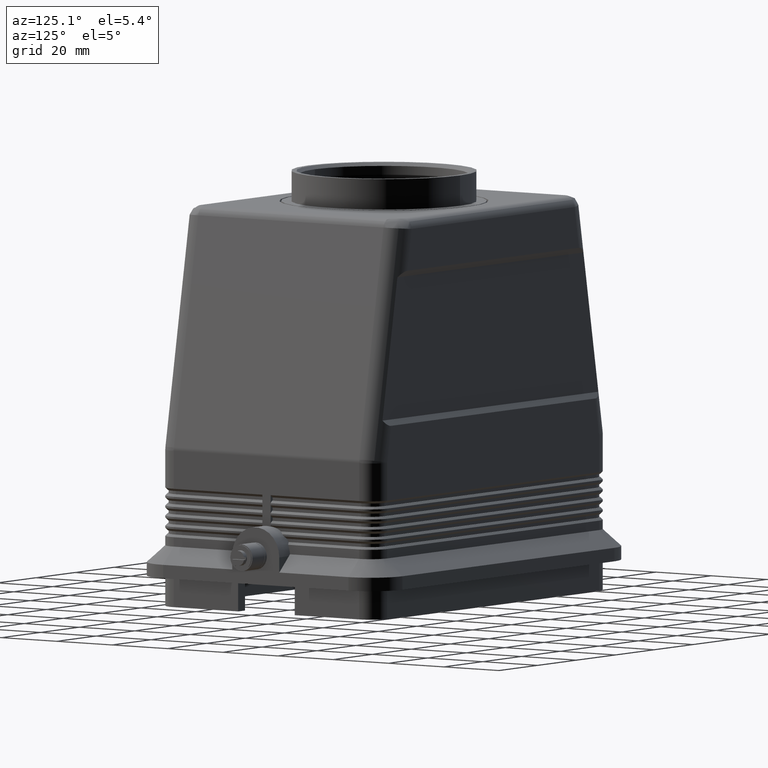
[diagram: clean part render]
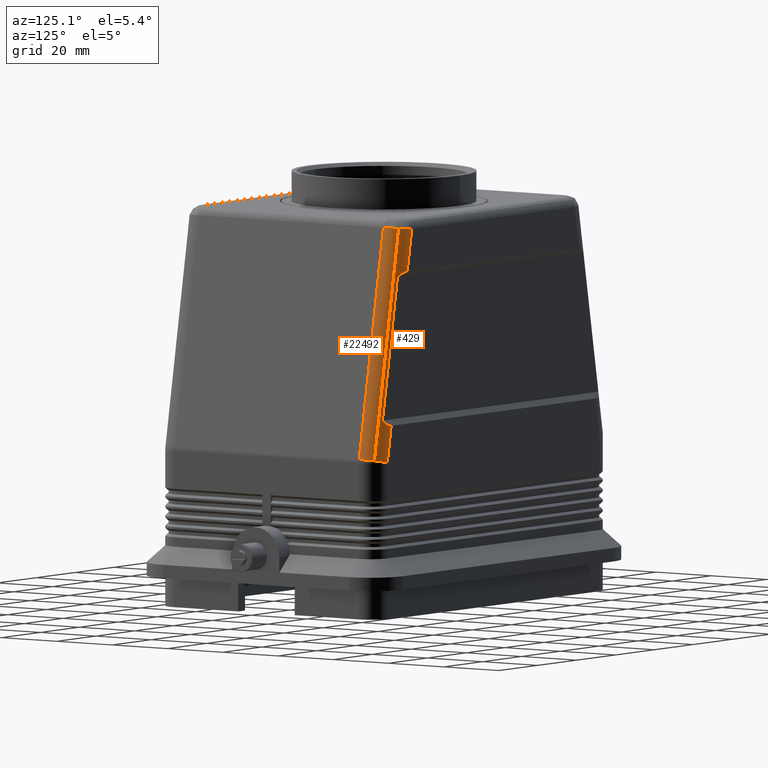
[diagram: same view with one multi-face feature highlighted, each face labeled with its STEP entity id]
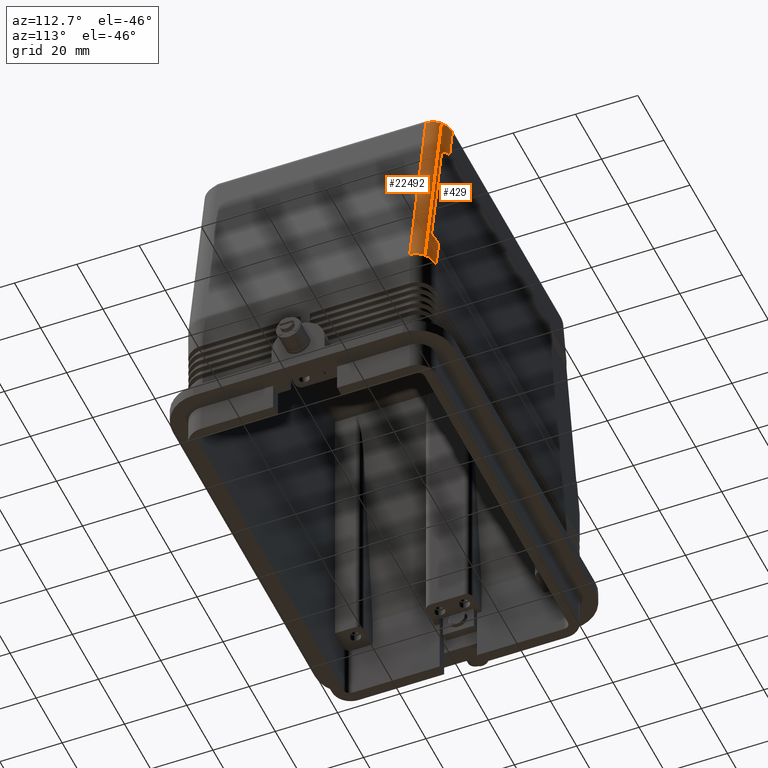
[diagram: same view with one multi-face feature highlighted, each face labeled with its STEP entity id]
A machine part, auxiliary view. The highlighted faces form ONE feature: a constant-radius fillet chain: 2 tangent blend faces with common blend radius 6 mm. The faces share edges in the B-rep.
A second angle (auxiliary view) of the same feature is appended — it is thin or edge-on in the first view.
Their STEP definitions:
[1] entity #429 (Cylinder):
#354=CARTESIAN_POINT('',(52.842166218856988,33.500000000000007,55.509555390639065));
#355=DIRECTION('',(-0.180104469576999,0.0,0.983647487689766));
#356=DIRECTION('',(0.695543808842544,0.707106781186548,0.127353091759902));
#357=AXIS2_PLACEMENT_3D('',#354,#355,#356);
#358=CYLINDRICAL_SURFACE('',#357,6.000000000000001);
#359=CARTESIAN_POINT('',(58.673262853055277,37.742640687119305,47.219350982648130));
#360=VERTEX_POINT('',#359);
#361=CARTESIAN_POINT('',(46.192766968488925,37.742640687119298,115.382059275279720));
#362=VERTEX_POINT('',#361);
#363=CARTESIAN_POINT('',(58.673262853055277,37.742640687119305,47.219350982648130));
#364=DIRECTION('',(-0.180104469576999,-1.025375E-016,0.983647487689766));
#365=VECTOR('',#364,69.295869857525162);
#366=LINE('',#363,#365);
#367=EDGE_CURVE('',#360,#362,#366,.T.);
#368=ORIENTED_EDGE('',*,*,#367,.F.);
#369=CARTESIAN_POINT('',(54.500000000000014,39.500000000000000,46.455232432088735));
#370=VERTEX_POINT('',#369);
#371=CARTESIAN_POINT('',(54.500000000000021,33.500000000000007,46.455232432088707));
#372=DIRECTION('',(0.180104469576998,3.899658E-015,-0.983647487689766));
#373=DIRECTION('',(0.695543808842544,0.707106781186548,0.127353091759904));
#374=AXIS2_PLACEMENT_3D('',#371,#372,#373);
#375=CIRCLE('',#374,6.0);
#376=EDGE_CURVE('',#370,#360,#375,.T.);
#377=ORIENTED_EDGE('',*,*,#376,.F.);
#378=CARTESIAN_POINT('',(52.520206790359865,39.500000000000000,57.267949192431125));
#379=VERTEX_POINT('',#378);
#380=CARTESIAN_POINT('',(54.500000000000014,39.500000000000000,46.455232432088735));
#381=DIRECTION('',(-0.180104469576999,0.0,0.983647487689766));
#382=VECTOR('',#381,10.992471282306198);
#383=LINE('',#380,#382);
#384=EDGE_CURVE('',#370,#379,#383,.T.);
#385=ORIENTED_EDGE('',*,*,#384,.T.);
#386=CARTESIAN_POINT('',(55.574832289820748,38.500000000000000,59.0));
#387=VERTEX_POINT('',#386);
#388=CARTESIAN_POINT('',(50.617390410213766,33.500000000000007,67.660254037844368));
#389=DIRECTION('',(-1.387779E-017,-0.866025403784438,-0.500000000000000));
#390=DIRECTION('',(0.206851439920911,0.489186181786303,-0.847295321214501));
#391=AXIS2_PLACEMENT_3D('',#388,#389,#390);
#392=ELLIPSE('',#391,12.199492348812557,6.000000000000001);
#393=EDGE_CURVE('',#379,#387,#392,.T.);
#394=ORIENTED_EDGE('',*,*,#393,.T.);
#395=CARTESIAN_POINT('',(47.884691444750317,38.500000000000000,101.000000000000010));
#396=VERTEX_POINT('',#395);
#397=CARTESIAN_POINT('',(55.574832289820748,38.500000000000000,59.0));
#398=DIRECTION('',(-0.180104469576999,0.0,0.983647487689766));
#399=VECTOR('',#398,42.698223220844000);
#400=LINE('',#397,#399);
#401=EDGE_CURVE('',#387,#396,#400,.T.);
#402=ORIENTED_EDGE('',*,*,#401,.T.);
#403=CARTESIAN_POINT('',(44.195793818574067,39.500000000000000,102.732050807568880));
#404=VERTEX_POINT('',#403);
#405=CARTESIAN_POINT('',(46.098610198720138,33.500000000000007,92.339745962155689));
#406=DIRECTION('',(0.0,-0.866025403784437,0.500000000000002));
#407=DIRECTION('',(-0.206851439920911,0.489186181786305,0.847295321214499));
#408=AXIS2_PLACEMENT_3D('',#405,#406,#407);
#409=ELLIPSE('',#408,12.199492348812509,6.000000000000001);
#410=EDGE_CURVE('',#396,#404,#409,.T.);
#411=ORIENTED_EDGE('',*,*,#410,.T.);
#412=CARTESIAN_POINT('',(41.949549600241610,39.500000000000000,115.0));
#413=VERTEX_POINT('',#412);
#414=CARTESIAN_POINT('',(44.195793818574067,39.500000000000000,102.732050807568880));
#415=DIRECTION('',(-0.180104469576999,0.0,0.983647487689766));
#416=VECTOR('',#415,12.471896025723728);
#417=LINE('',#414,#416);
#418=EDGE_CURVE('',#404,#413,#417,.T.);
#419=ORIENTED_EDGE('',*,*,#418,.T.);
#420=CARTESIAN_POINT('',(41.949549600241610,33.500000000000007,115.0));
#421=DIRECTION('',(-0.089677214303761,0.0,0.995970881720303));
#422=DIRECTION('',(0.995970881720303,0.0,0.089677214303761));
#423=AXIS2_PLACEMENT_3D('',#420,#421,#422);
#424=ELLIPSE('',#423,6.025091355991703,6.0);
#425=EDGE_CURVE('',#362,#413,#424,.T.);
#426=ORIENTED_EDGE('',*,*,#425,.F.);
#427=EDGE_LOOP('',(#368,#377,#385,#394,#402,#411,#419,#426));
#428=FACE_OUTER_BOUND('',#427,.T.);
#429=ADVANCED_FACE('',(#428),#358,.T.);
[2] entity #22492 (Cylinder):
#359=CARTESIAN_POINT('',(58.673262853055277,37.742640687119305,47.219350982648130));
#360=VERTEX_POINT('',#359);
#361=CARTESIAN_POINT('',(46.192766968488925,37.742640687119298,115.382059275279720));
#362=VERTEX_POINT('',#361);
#363=CARTESIAN_POINT('',(58.673262853055277,37.742640687119305,47.219350982648130));
#364=DIRECTION('',(-0.180104469576999,-1.025375E-016,0.983647487689766));
#365=VECTOR('',#364,69.295869857525162);
#366=LINE('',#363,#365);
#367=EDGE_CURVE('',#360,#362,#366,.T.);
#648=CARTESIAN_POINT('',(47.950365150514038,33.500000000000007,115.540313408731010));
#649=VERTEX_POINT('',#648);
#22145=CARTESIAN_POINT('',(41.949549600241610,33.500000000000007,115.0));
#22146=DIRECTION('',(-0.089677214303761,0.0,0.995970881720303));
#22147=DIRECTION('',(0.995970881720303,0.0,0.089677214303761));
#22148=AXIS2_PLACEMENT_3D('',#22145,#22146,#22147);
#22149=ELLIPSE('',#22148,6.025091355991703,6.0);
#22150=EDGE_CURVE('',#649,#362,#22149,.T.);
#22468=CARTESIAN_POINT('',(52.842166218856988,33.500000000000007,55.509555390639065));
#22469=DIRECTION('',(-0.180104469576999,0.0,0.983647487689766));
#22470=DIRECTION('',(0.695543808842544,0.707106781186548,0.127353091759902));
#22471=AXIS2_PLACEMENT_3D('',#22468,#22469,#22470);
#22472=CYLINDRICAL_SURFACE('',#22471,6.000000000000001);
#22473=ORIENTED_EDGE('',*,*,#367,.T.);
#22474=ORIENTED_EDGE('',*,*,#22150,.F.);
#22475=CARTESIAN_POINT('',(60.401884926138614,33.500000000000007,47.535859249550697));
#22476=VERTEX_POINT('',#22475);
#22477=CARTESIAN_POINT('',(47.950365150514038,33.500000000000007,115.540313408731010));
#22478=DIRECTION('',(0.180104469576999,0.0,-0.983647487689766));
#22479=VECTOR('',#22478,69.134984850007939);
#22480=LINE('',#22477,#22479);
#22481=EDGE_CURVE('',#649,#22476,#22480,.T.);
#22482=ORIENTED_EDGE('',*,*,#22481,.T.);
#22483=CARTESIAN_POINT('',(54.500000000000021,33.500000000000007,46.455232432088707));
#22484=DIRECTION('',(0.180104469576998,3.899658E-015,-0.983647487689766));
#22485=DIRECTION('',(0.695543808842544,0.707106781186548,0.127353091759904));
#22486=AXIS2_PLACEMENT_3D('',#22483,#22484,#22485);
#22487=CIRCLE('',#22486,6.0);
#22488=EDGE_CURVE('',#360,#22476,#22487,.T.);
#22489=ORIENTED_EDGE('',*,*,#22488,.F.);
#22490=EDGE_LOOP('',(#22473,#22474,#22482,#22489));
#22491=FACE_OUTER_BOUND('',#22490,.T.);
#22492=ADVANCED_FACE('',(#22491),#22472,.T.);